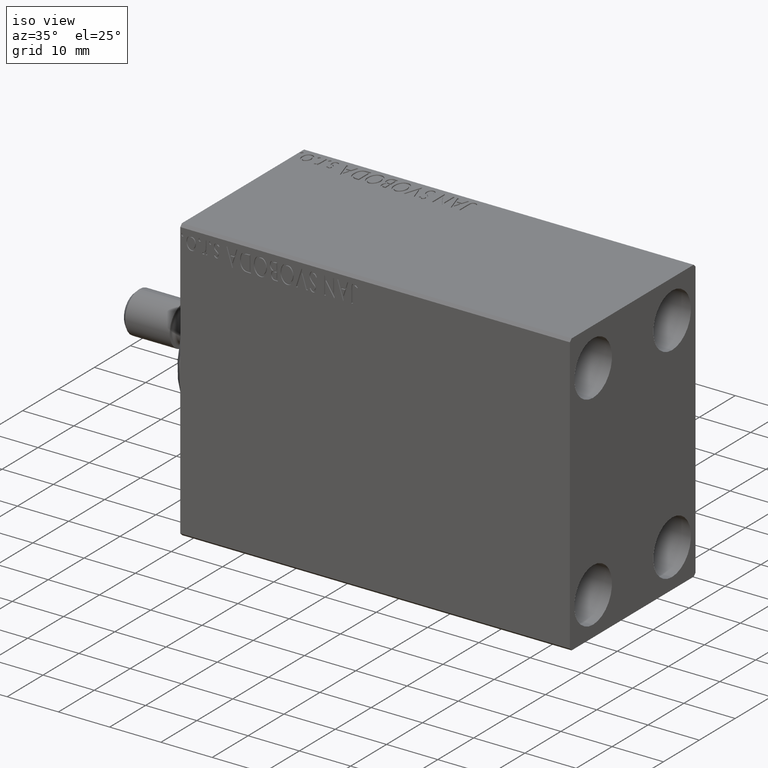
[diagram: clean part render]
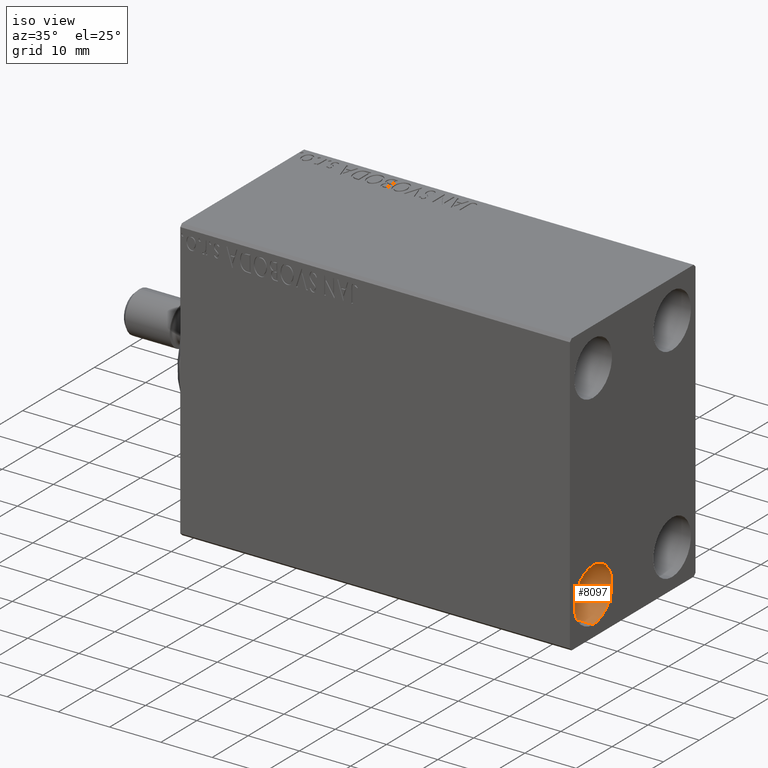
[diagram: same view with one face highlighted and labeled with its STEP entity id]
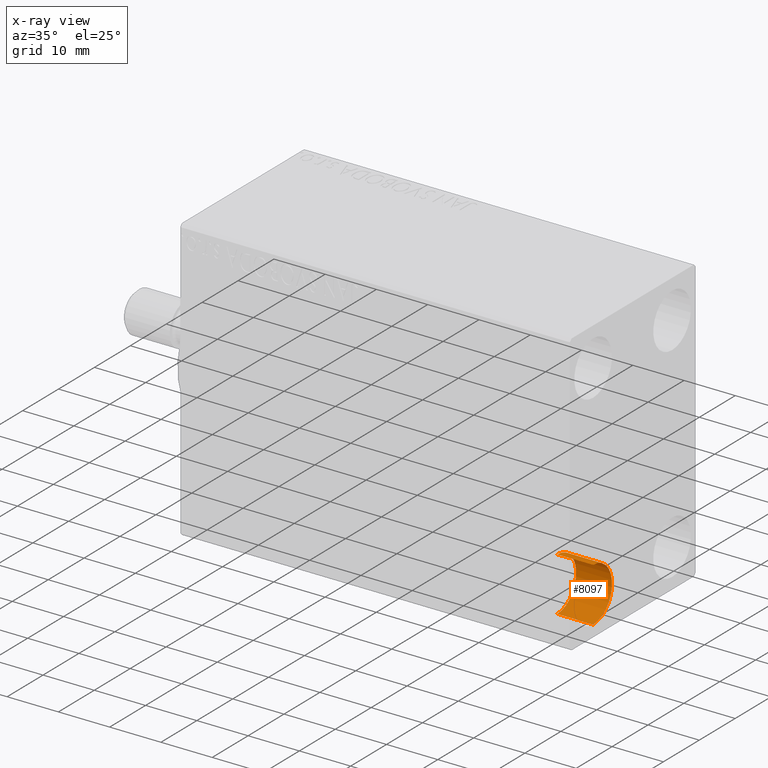
[diagram: x-ray of the same camera — body ghosted, the highlighted face saturated]
A machine part, iso view. The second image highlights one B-rep face of the part: STEP entity #8097.
The next image is the same camera in x-ray: the body ghosted, the highlighted face saturated — about 1% of this face is hidden behind the body in this view.
In plain terms, the highlighted cylindrical surface (edge-blend (fillet) strip) has radius 5.25 mm, axis along (1, 0, 0).
Its self-contained STEP definition (entity closure, byte-faithful):
#266 = DIRECTION ( 'NONE',  ( 1.000000000000000000, -0.000000000000000000, -0.000000000000000000 ) ) ;
#1196 = DIRECTION ( 'NONE',  ( 1.000000000000000000, -0.000000000000000000, -0.000000000000000000 ) ) ;
#5103 = CIRCLE ( 'NONE', #38114, 5.250000000000000888 ) ;
#6121 = DIRECTION ( 'NONE',  ( -1.000000000000000000, -0.000000000000000000, -0.000000000000000000 ) ) ;
#8097 = ADVANCED_FACE ( 'NONE', ( #38537 ), #39215, .F. ) ;
#8531 = AXIS2_PLACEMENT_3D ( 'NONE', #38320, #1196, #15128 ) ;
#11512 = CARTESIAN_POINT ( 'NONE',  ( 68.99999999999998579, -11.00000000000000355, -20.00000000000000000 ) ) ;
#11969 = DIRECTION ( 'NONE',  ( -1.000000000000000000, -0.000000000000000000, -0.000000000000000000 ) ) ;
#12918 = VECTOR ( 'NONE', #266, 1000.000000000000000 ) ;
#13550 = ORIENTED_EDGE ( 'NONE', *, *, #18449, .T. ) ;
#14820 = ORIENTED_EDGE ( 'NONE', *, *, #42123, .T. ) ;
#15128 = DIRECTION ( 'NONE',  ( 0.000000000000000000, 0.000000000000000000, -1.000000000000000000 ) ) ;
#15825 = EDGE_CURVE ( 'NONE', #41700, #35418, #31738, .T. ) ;
#17337 = CARTESIAN_POINT ( 'NONE',  ( 76.00000000000000000, -11.00000000000000355, -14.75000000000000000 ) ) ;
#18099 = CARTESIAN_POINT ( 'NONE',  ( 68.99999999999998579, -11.00000000000000355, -25.25000000000000000 ) ) ;
#18449 = EDGE_CURVE ( 'NONE', #41700, #27502, #5103, .T. ) ;
#19809 = DIRECTION ( 'NONE',  ( 0.000000000000000000, 0.000000000000000000, 1.000000000000000000 ) ) ;
#20933 = CARTESIAN_POINT ( 'NONE',  ( 68.99999999999998579, -11.00000000000000355, -14.75000000000000000 ) ) ;
#21661 = LINE ( 'NONE', #35860, #33486 ) ;
#22584 = CARTESIAN_POINT ( 'NONE',  ( 76.00000000000000000, -11.00000000000000355, -25.25000000000000000 ) ) ;
#25493 = DIRECTION ( 'NONE',  ( 1.000000000000000000, -0.000000000000000000, -0.000000000000000000 ) ) ;
#27502 = VERTEX_POINT ( 'NONE', #18099 ) ;
#29458 = ORIENTED_EDGE ( 'NONE', *, *, #29885, .F. ) ;
#29885 = EDGE_CURVE ( 'NONE', #35418, #36737, #37633, .T. ) ;
#31738 = LINE ( 'NONE', #20933, #12918 ) ;
#31976 = DIRECTION ( 'NONE',  ( 0.000000000000000000, 0.000000000000000000, 1.000000000000000000 ) ) ;
#32164 = EDGE_LOOP ( 'NONE', ( #40476, #13550, #14820, #29458 ) ) ;
#33486 = VECTOR ( 'NONE', #25493, 1000.000000000000000 ) ;
#35418 = VERTEX_POINT ( 'NONE', #17337 ) ;
#35860 = CARTESIAN_POINT ( 'NONE',  ( 68.99999999999998579, -11.00000000000000355, -25.25000000000000000 ) ) ;
#36737 = VERTEX_POINT ( 'NONE', #22584 ) ;
#37633 = CIRCLE ( 'NONE', #43416, 5.250000000000000888 ) ;
#37802 = CARTESIAN_POINT ( 'NONE',  ( 76.00000000000000000, -11.00000000000000355, -20.00000000000000000 ) ) ;
#38114 = AXIS2_PLACEMENT_3D ( 'NONE', #11512, #11969, #31976 ) ;
#38320 = CARTESIAN_POINT ( 'NONE',  ( 68.99999999999998579, -11.00000000000000355, -20.00000000000000000 ) ) ;
#38537 = FACE_OUTER_BOUND ( 'NONE', #32164, .T. ) ;
#39215 = CYLINDRICAL_SURFACE ( 'NONE', #8531, 5.250000000000000888 ) ;
#39797 = CARTESIAN_POINT ( 'NONE',  ( 68.99999999999998579, -11.00000000000000355, -14.75000000000000000 ) ) ;
#40476 = ORIENTED_EDGE ( 'NONE', *, *, #15825, .F. ) ;
#41700 = VERTEX_POINT ( 'NONE', #39797 ) ;
#42123 = EDGE_CURVE ( 'NONE', #27502, #36737, #21661, .T. ) ;
#43416 = AXIS2_PLACEMENT_3D ( 'NONE', #37802, #6121, #19809 ) ;